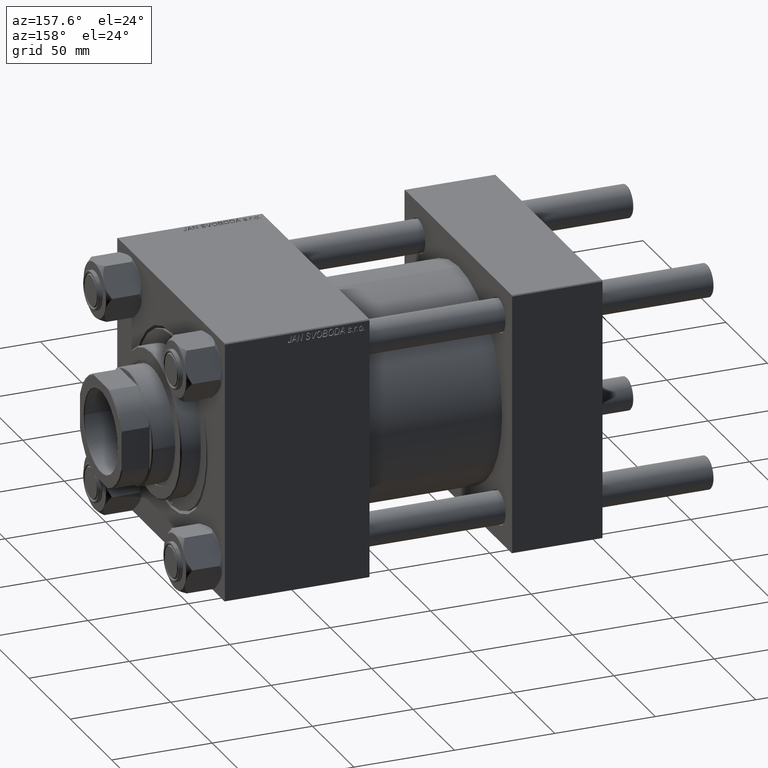
[diagram: clean part render]
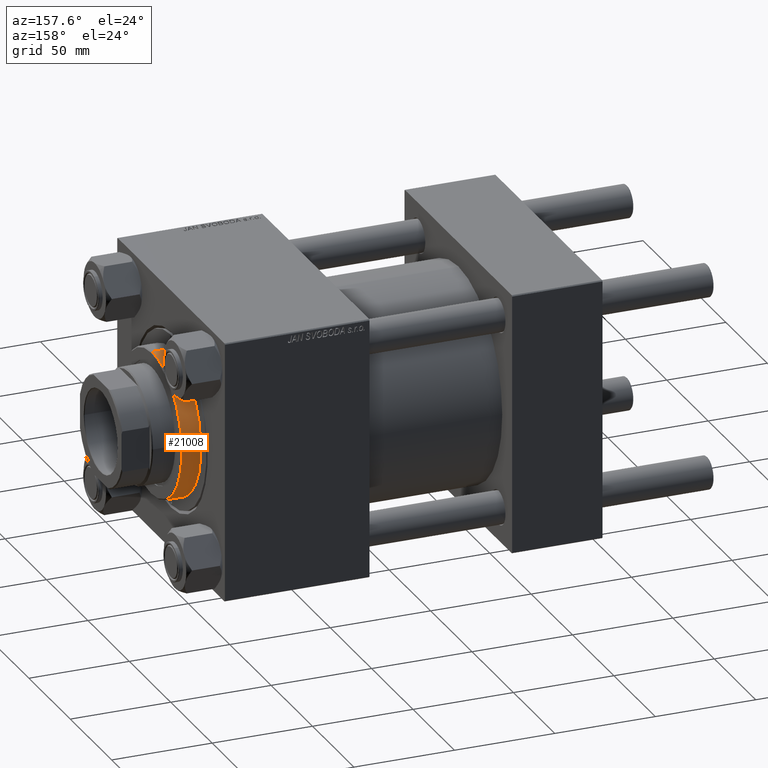
[diagram: same view with one face highlighted and labeled with its STEP entity id]
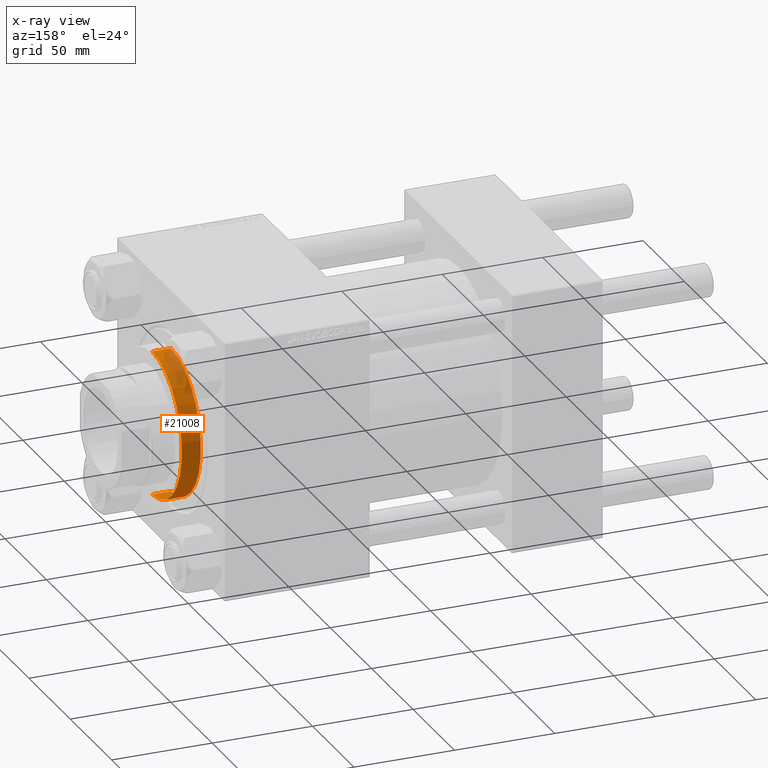
[diagram: x-ray of the same camera — body ghosted, the highlighted face saturated]
A machine part, auxiliary view. The second image highlights one B-rep face of the part: STEP entity #21008.
The next image is the same camera in x-ray: the body ghosted, the highlighted face saturated — about 18% of this face is hidden behind the body in this view.
In plain terms, the highlighted cylindrical surface (partial cylindrical patch) has radius 36 mm, axis along (-1, -0, 0).
Its self-contained STEP definition (entity closure, byte-faithful):
#1510 = VERTEX_POINT ( 'NONE', #23972 ) ;
#4370 = LINE ( 'NONE', #12531, #38633 ) ;
#4452 = DIRECTION ( 'NONE',  ( -0.000000000000000000, -0.000000000000000000, -1.000000000000000000 ) ) ;
#6147 = DIRECTION ( 'NONE',  ( 0.000000000000000000, 0.000000000000000000, -1.000000000000000000 ) ) ;
#6656 = DIRECTION ( 'NONE',  ( 1.000000000000000000, 0.000000000000000000, 0.000000000000000000 ) ) ;
#6771 = DIRECTION ( 'NONE',  ( 0.000000000000000000, 0.000000000000000000, 1.000000000000000000 ) ) ;
#7490 = EDGE_CURVE ( 'NONE', #25724, #1510, #20547, .T. ) ;
#7958 = EDGE_LOOP ( 'NONE', ( #18772, #28690, #48992, #24453 ) ) ;
#9025 = AXIS2_PLACEMENT_3D ( 'NONE', #45616, #6771, #34387 ) ;
#9127 = CARTESIAN_POINT ( 'NONE',  ( 36.00000000000000000, 4.408728476930470856E-15, 38.19999999999998863 ) ) ;
#10216 = CARTESIAN_POINT ( 'NONE',  ( 0.000000000000000000, 0.000000000000000000, 38.69999999999999574 ) ) ;
#11420 = EDGE_CURVE ( 'NONE', #15964, #1510, #39257, .T. ) ;
#12531 = CARTESIAN_POINT ( 'NONE',  ( 36.00000000000000000, 4.408728476930470856E-15, 38.69999999999999574 ) ) ;
#12885 = VERTEX_POINT ( 'NONE', #9127 ) ;
#15964 = VERTEX_POINT ( 'NONE', #49500 ) ;
#16959 = CARTESIAN_POINT ( 'NONE',  ( -36.00000000000000000, 0.000000000000000000, 38.69999999999999574 ) ) ;
#17432 = EDGE_CURVE ( 'NONE', #12885, #15964, #4370, .T. ) ;
#18772 = ORIENTED_EDGE ( 'NONE', *, *, #36133, .T. ) ;
#18930 = CARTESIAN_POINT ( 'NONE',  ( 0.000000000000000000, 0.000000000000000000, 38.19999999999998863 ) ) ;
#19048 = CARTESIAN_POINT ( 'NONE',  ( -36.00000000000000000, 0.000000000000000000, 38.19999999999998863 ) ) ;
#19966 = DIRECTION ( 'NONE',  ( -0.000000000000000000, -0.000000000000000000, -1.000000000000000000 ) ) ;
#20547 = LINE ( 'NONE', #16959, #48198 ) ;
#21008 = ADVANCED_FACE ( 'NONE', ( #41412 ), #26578, .T. ) ;
#23972 = CARTESIAN_POINT ( 'NONE',  ( -36.00000000000000000, 0.000000000000000000, 28.69999999999999929 ) ) ;
#24453 = ORIENTED_EDGE ( 'NONE', *, *, #7490, .F. ) ;
#25724 = VERTEX_POINT ( 'NONE', #19048 ) ;
#26578 = CYLINDRICAL_SURFACE ( 'NONE', #45945, 36.00000000000000000 ) ;
#26836 = DIRECTION ( 'NONE',  ( -1.000000000000000000, 0.000000000000000000, 0.000000000000000000 ) ) ;
#28690 = ORIENTED_EDGE ( 'NONE', *, *, #17432, .T. ) ;
#30855 = CIRCLE ( 'NONE', #50409, 36.00000000000000000 ) ;
#34387 = DIRECTION ( 'NONE',  ( 1.000000000000000000, 0.000000000000000000, 0.000000000000000000 ) ) ;
#36133 = EDGE_CURVE ( 'NONE', #25724, #12885, #30855, .T. ) ;
#38633 = VECTOR ( 'NONE', #19966, 1000.000000000000000 ) ;
#39257 = CIRCLE ( 'NONE', #9025, 36.00000000000000000 ) ;
#41412 = FACE_OUTER_BOUND ( 'NONE', #7958, .T. ) ;
#45616 = CARTESIAN_POINT ( 'NONE',  ( 0.000000000000000000, 0.000000000000000000, 28.69999999999999929 ) ) ;
#45945 = AXIS2_PLACEMENT_3D ( 'NONE', #10216, #46255, #26836 ) ;
#46255 = DIRECTION ( 'NONE',  ( -0.000000000000000000, -0.000000000000000000, -1.000000000000000000 ) ) ;
#48198 = VECTOR ( 'NONE', #4452, 1000.000000000000000 ) ;
#48992 = ORIENTED_EDGE ( 'NONE', *, *, #11420, .T. ) ;
#49500 = CARTESIAN_POINT ( 'NONE',  ( 36.00000000000000000, 4.408728476930470856E-15, 28.69999999999999929 ) ) ;
#50409 = AXIS2_PLACEMENT_3D ( 'NONE', #18930, #6147, #6656 ) ;